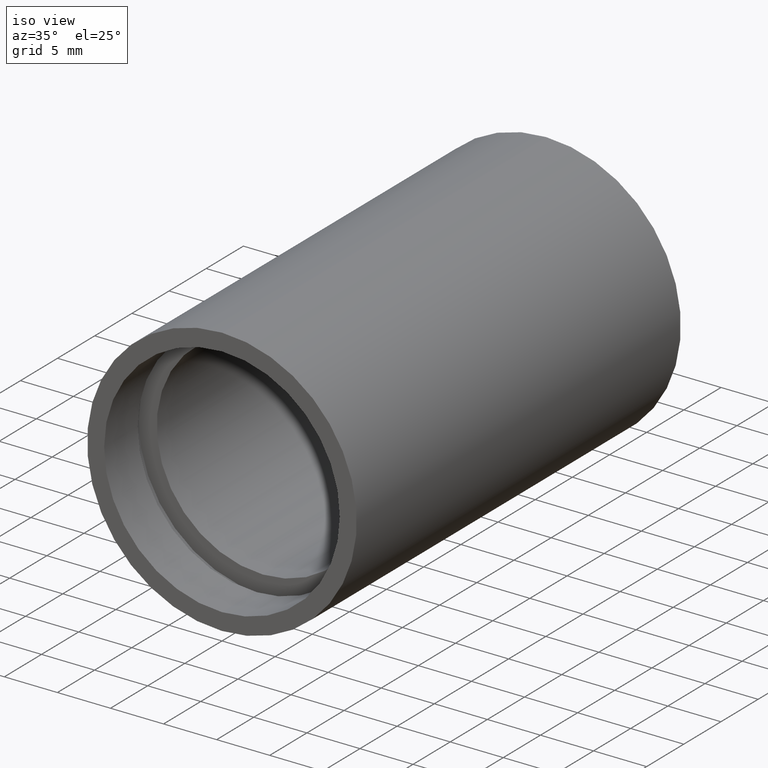
[diagram: clean part render]
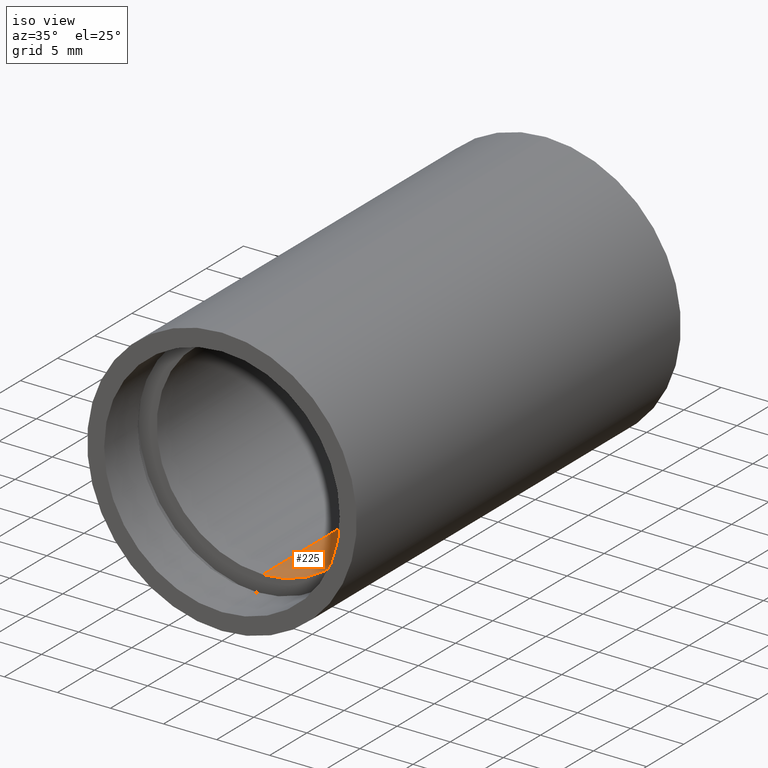
[diagram: same view with one face highlighted and labeled with its STEP entity id]
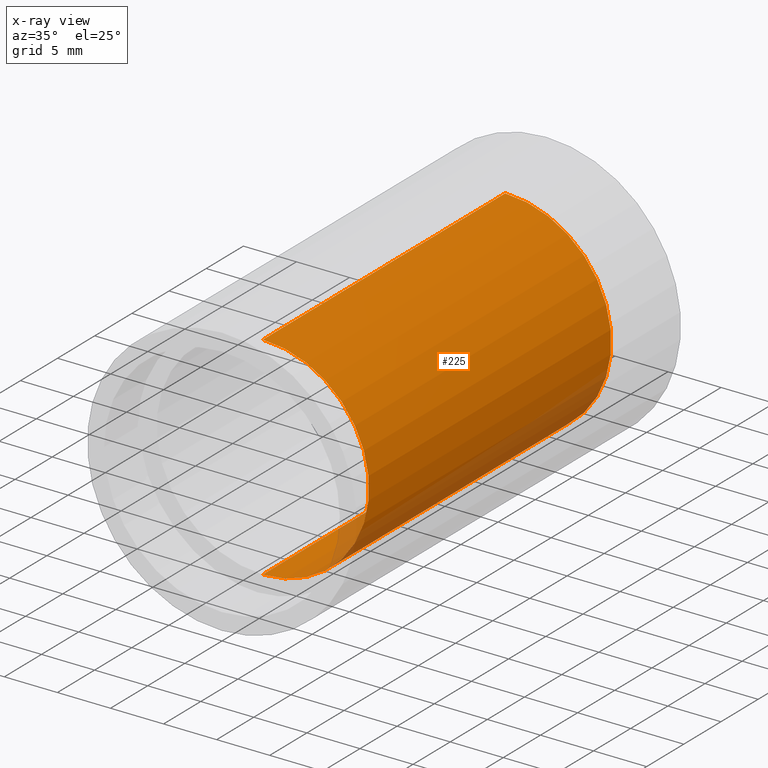
[diagram: x-ray of the same camera — body ghosted, the highlighted face saturated]
A machine part, iso view. The second image highlights one B-rep face of the part: STEP entity #225.
The next image is the same camera in x-ray: the body ghosted, the highlighted face saturated — about 9% of this face is hidden behind the body in this view.
In plain terms, the highlighted cylindrical surface (partial cylindrical patch) has radius 10 mm, axis along (-0, 1, -0).
Its self-contained STEP definition (entity closure, byte-faithful):
#3 = ORIENTED_EDGE ( 'NONE', *, *, #433, .F. ) ;
#4 = CARTESIAN_POINT ( 'NONE',  ( 0.0000000000000000000, 5.499999999999976900, 10.00000000000002000 ) ) ;
#33 = DIRECTION ( 'NONE',  ( 0.0000000000000000000, 0.0000000000000000000, 1.000000000000000000 ) ) ;
#42 = CIRCLE ( 'NONE', #372, 10.00000000000002000 ) ;
#49 = CYLINDRICAL_SURFACE ( 'NONE', #269, 10.00000000000002000 ) ;
#62 = CARTESIAN_POINT ( 'NONE',  ( 0.0000000000000000000, 161.3761669434274500, 0.0000000000000000000 ) ) ;
#97 = CARTESIAN_POINT ( 'NONE',  ( 1.224646799147355400E-015, 5.499999999999976900, -10.00000000000002000 ) ) ;
#99 = EDGE_LOOP ( 'NONE', ( #174, #3, #453, #232 ) ) ;
#114 = LINE ( 'NONE', #396, #128 ) ;
#122 = AXIS2_PLACEMENT_3D ( 'NONE', #527, #279, #226 ) ;
#128 = VECTOR ( 'NONE', #595, 1000.000000000000000 ) ;
#147 = CARTESIAN_POINT ( 'NONE',  ( 0.0000000000000000000, 38.09999999999998000, 10.00000000000002000 ) ) ;
#156 = CARTESIAN_POINT ( 'NONE',  ( 1.224646799147355400E-015, 38.09999999999998000, -10.00000000000002000 ) ) ;
#172 = DIRECTION ( 'NONE',  ( -0.0000000000000000000, 1.000000000000000000, -0.0000000000000000000 ) ) ;
#174 = ORIENTED_EDGE ( 'NONE', *, *, #616, .F. ) ;
#225 = ADVANCED_FACE ( 'NONE', ( #283 ), #49, .F. ) ;
#226 = DIRECTION ( 'NONE',  ( 0.0000000000000000000, 0.0000000000000000000, 1.000000000000000000 ) ) ;
#232 = ORIENTED_EDGE ( 'NONE', *, *, #471, .T. ) ;
#246 = VERTEX_POINT ( 'NONE', #156 ) ;
#259 = CARTESIAN_POINT ( 'NONE',  ( 0.0000000000000000000, 161.3761669434274500, 10.00000000000002000 ) ) ;
#269 = AXIS2_PLACEMENT_3D ( 'NONE', #62, #408, #601 ) ;
#277 = LINE ( 'NONE', #259, #570 ) ;
#279 = DIRECTION ( 'NONE',  ( -0.0000000000000000000, 1.000000000000000000, -0.0000000000000000000 ) ) ;
#283 = FACE_OUTER_BOUND ( 'NONE', #99, .T. ) ;
#314 = DIRECTION ( 'NONE',  ( -0.0000000000000000000, 1.000000000000000000, -0.0000000000000000000 ) ) ;
#363 = VERTEX_POINT ( 'NONE', #97 ) ;
#372 = AXIS2_PLACEMENT_3D ( 'NONE', #379, #172, #33 ) ;
#379 = CARTESIAN_POINT ( 'NONE',  ( 0.0000000000000000000, 38.09999999999998000, 0.0000000000000000000 ) ) ;
#396 = CARTESIAN_POINT ( 'NONE',  ( 1.224646799147355400E-015, 161.3761669434274500, -10.00000000000002000 ) ) ;
#408 = DIRECTION ( 'NONE',  ( -0.0000000000000000000, 1.000000000000000000, -0.0000000000000000000 ) ) ;
#433 = EDGE_CURVE ( 'NONE', #493, #363, #547, .T. ) ;
#453 = ORIENTED_EDGE ( 'NONE', *, *, #549, .T. ) ;
#471 = EDGE_CURVE ( 'NONE', #618, #246, #42, .T. ) ;
#493 = VERTEX_POINT ( 'NONE', #4 ) ;
#527 = CARTESIAN_POINT ( 'NONE',  ( 0.0000000000000000000, 5.499999999999976900, 0.0000000000000000000 ) ) ;
#547 = CIRCLE ( 'NONE', #122, 10.00000000000002000 ) ;
#549 = EDGE_CURVE ( 'NONE', #493, #618, #277, .T. ) ;
#570 = VECTOR ( 'NONE', #314, 1000.000000000000000 ) ;
#595 = DIRECTION ( 'NONE',  ( -0.0000000000000000000, 1.000000000000000000, -0.0000000000000000000 ) ) ;
#601 = DIRECTION ( 'NONE',  ( 0.0000000000000000000, 0.0000000000000000000, 1.000000000000000000 ) ) ;
#616 = EDGE_CURVE ( 'NONE', #363, #246, #114, .T. ) ;
#618 = VERTEX_POINT ( 'NONE', #147 ) ;